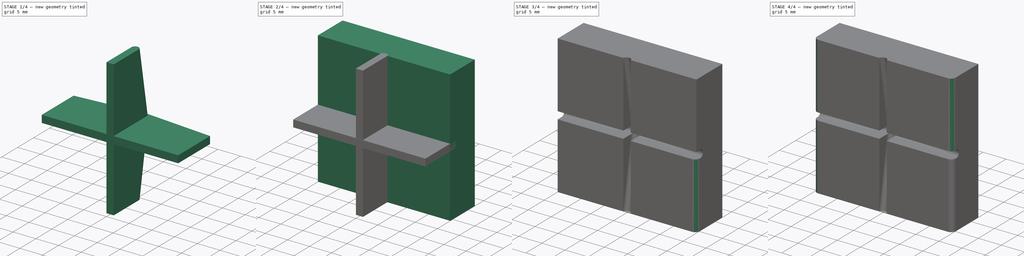
[diagram: build sequence overview — one tinted view per stage of 4, left to right]
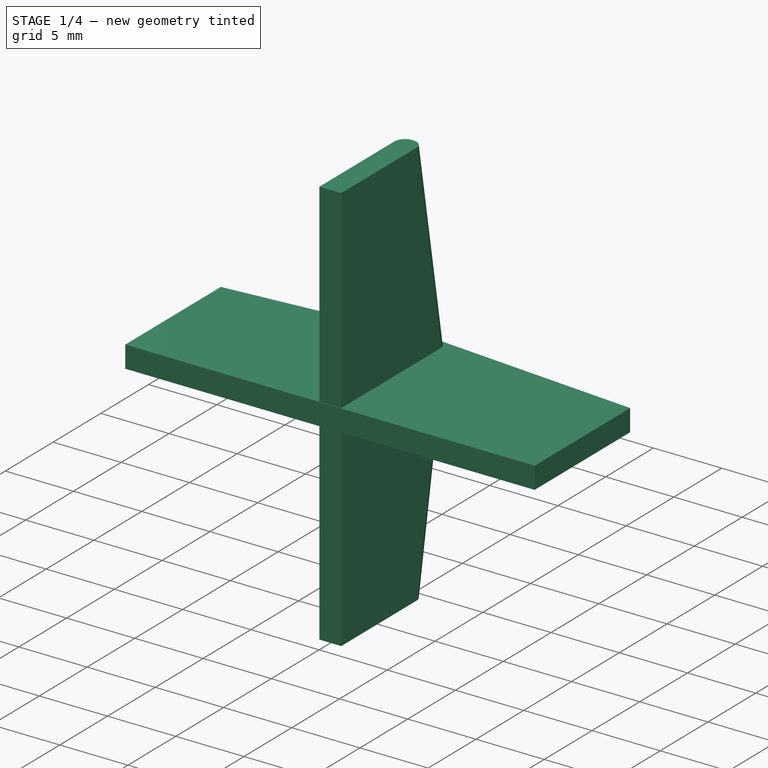
[diagram: stage 1 of 4 — iso view after this stage's code; geometry added in this stage tinted green]
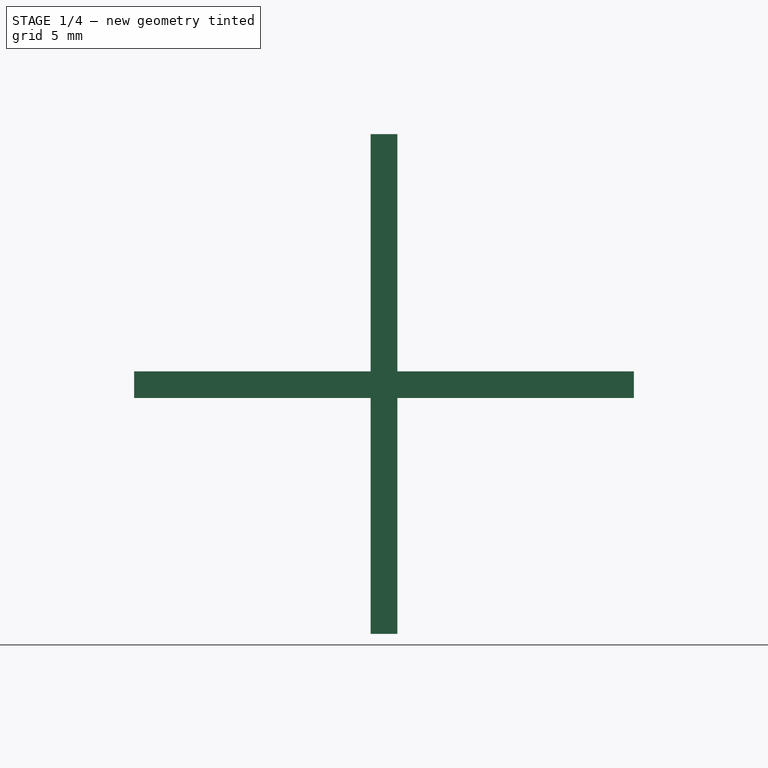
[diagram: stage 1 of 4 — front view after this stage's code; geometry added in this stage tinted green]
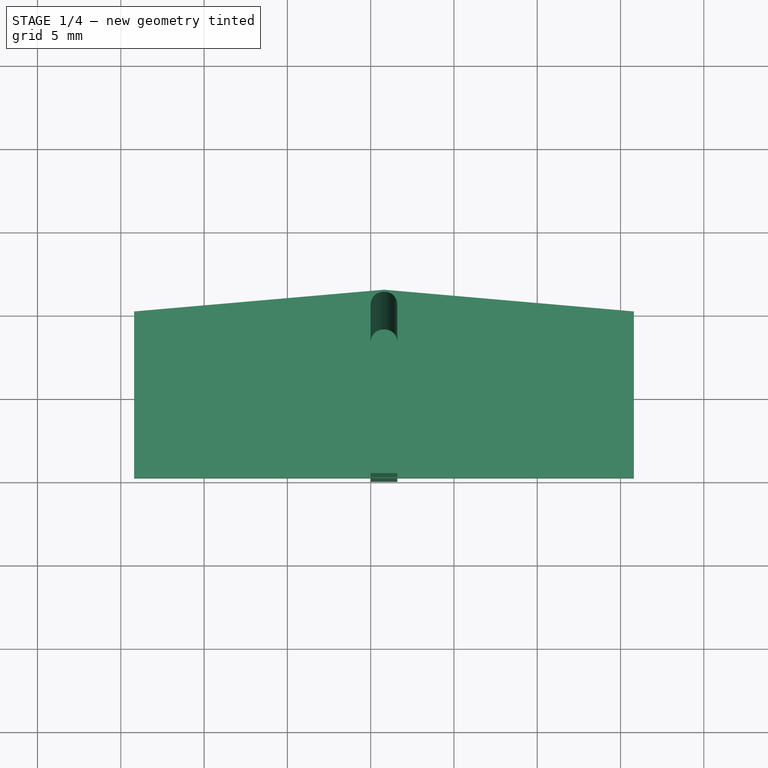
[diagram: stage 1 of 4 — top view after this stage's code; geometry added in this stage tinted green]
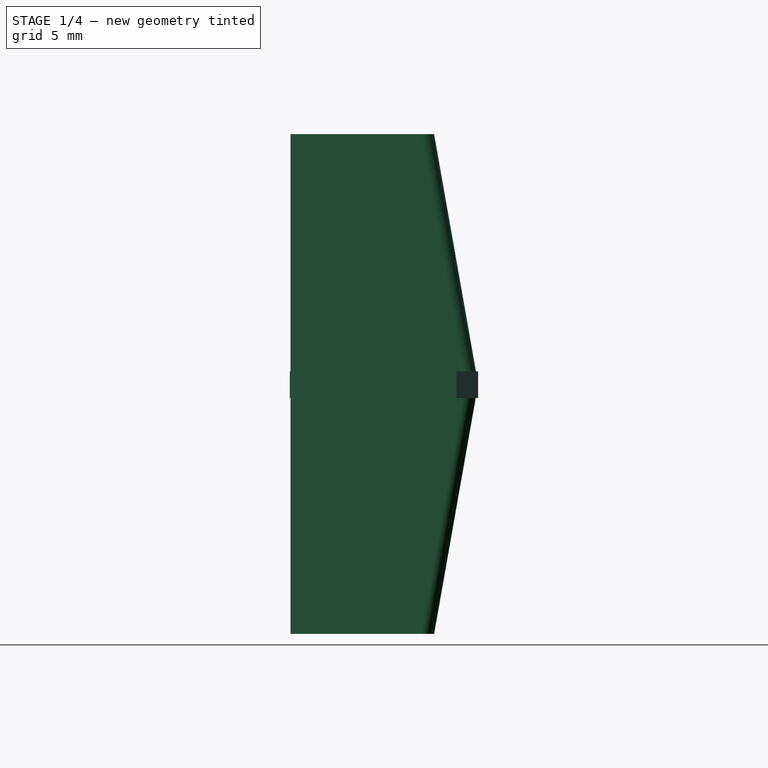
[diagram: stage 1 of 4 — right view after this stage's code; geometry added in this stage tinted green]
FCSTD DOCUMENT  (FreeCAD 0.16R6706 (Git))
Label: Bender
License: All rights reserved
LicenseURL: http://en.wikipedia.org/wiki/All_rights_reserved
objects: PartDesign::Fillet×6, Sketcher::SketchObject×2, PartDesign::Pad×2, Part::Box×1, Part::MultiFuse×1, Part::Cut×1
note: 15 computed .brp shape members not serialized (recipe doc carries the construction recipe); baked Part::Feature solids carry a one-line shape summary decoded from their .brp

FEATURE [Sketcher::SketchObject] Sketch
  Placement = pos=(0.8,0,0) rot=(0,0,1;0rad)
  sketch-geometry (5):
    g0: LineSegment StartX=-15 StartY=0 StartZ=0 EndX=15 EndY=0 EndZ=0
    g1: LineSegment StartX=15 StartY=0 StartZ=0 EndX=15 EndY=10 EndZ=0
    g2: LineSegment StartX=15 StartY=10 StartZ=0 EndX=0 EndY=11.3048 EndZ=0
    g3: LineSegment StartX=0 StartY=11.3048 StartZ=0 EndX=-15 EndY=10 EndZ=0
    g4: LineSegment StartX=-15 StartY=10 StartZ=0 EndX=-15 EndY=0 EndZ=0
  constraints (4):
    c: Coincident(g0,g1)
    c: Coincident(g1,g2)
    c: Coincident(g2,g3)
    c: Coincident(g3,g4)
FEATURE [PartDesign::Pad] Pad
  Length = 1.6
  Length2 = 100
  Placement = pos=(0.8,0,0) rot=(0,0,1;0rad)
  Sketch = -> Sketch
  Type = 0
FEATURE [Sketcher::SketchObject] Sketch001
  Placement = pos=(0,0,0.8) rot=(0.57735,0.57735,0.57735;2.0944rad)
  sketch-geometry (5):
    g0: LineSegment StartX=11.3125 StartY=0.040257 StartZ=0 EndX=8.6676 EndY=-14.9597 EndZ=0
    g1: LineSegment StartX=8.6676 StartY=-14.9597 StartZ=0 EndX=0.0402553 EndY=-14.9597 EndZ=0
    g2: LineSegment StartX=0.0402553 StartY=-14.9597 StartZ=0 EndX=0.0402553 EndY=15.0403 EndZ=0
    g3: LineSegment StartX=0.0402553 StartY=15.0403 StartZ=0 EndX=8.6676 EndY=15.0403 EndZ=0
    g4: LineSegment StartX=8.6676 StartY=15.0403 StartZ=0 EndX=11.3125 EndY=0.040257 EndZ=0
  constraints (14):
    c: Coincident(g0,g1)
    c: Coincident(g1,g2)
    c: Coincident(g2,g3)
    c: Coincident(g3,g4)
    c: Coincident(g4,g0)
    c: Equal(g1,g3)
    c: DistanceX(g-1,g0) = 11.3125
    c: DistanceX(g1,g0) = 8.62734
    c: DistanceY(g1,g2) = 30
    c: Perpendicular(g1,g2)
    c: Perpendicular(g3,g2)
    c: Angle(g4) = -1.39626
    c: Angle(g0) = -1.74533
    c: Vertical(g2)
FEATURE [PartDesign::Pad] Pad001
  Length = 1.6
  Length2 = 100
  Placement = pos=(0,0,0.8) rot=(0.57735,0.57735,0.57735;2.0944rad)
  Sketch = -> Sketch001
  Type = 0
FEATURE [PartDesign::Fillet] Fillet001
  Base = -> Pad001 [Edge15,Edge14,Edge4,Edge3]
  Placement = pos=(0,0,0.8) rot=(0.57735,0.57735,0.57735;2.0944rad)
  Radius = 0.75
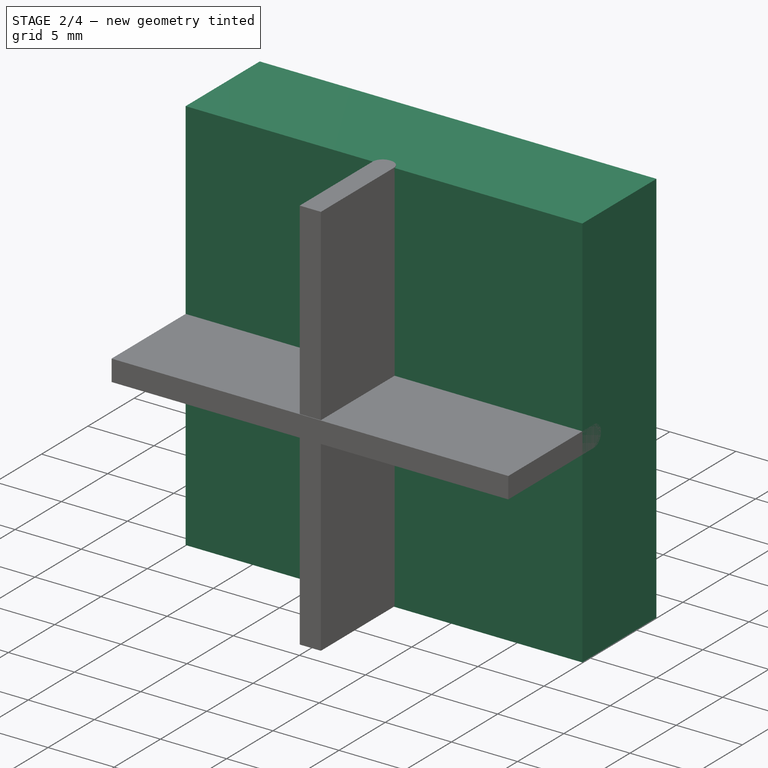
[diagram: stage 2 of 4 — iso view after this stage's code; geometry added in this stage tinted green]
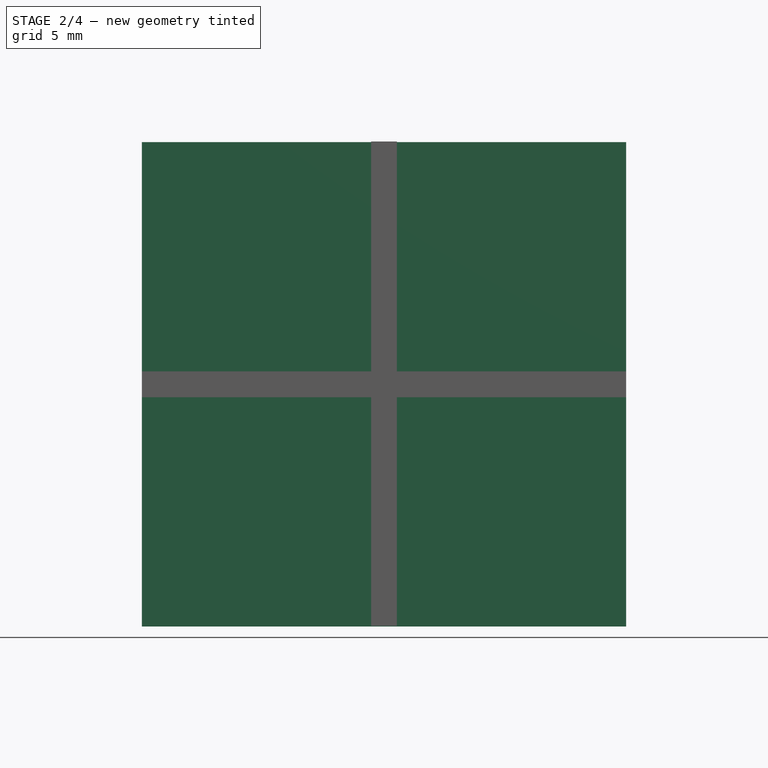
[diagram: stage 2 of 4 — front view after this stage's code; geometry added in this stage tinted green]
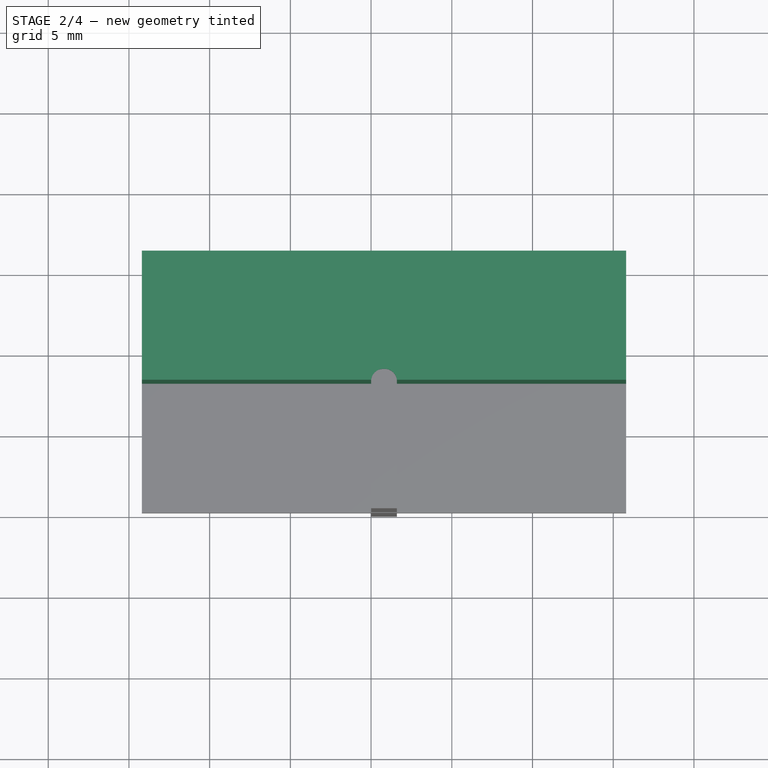
[diagram: stage 2 of 4 — top view after this stage's code; geometry added in this stage tinted green]
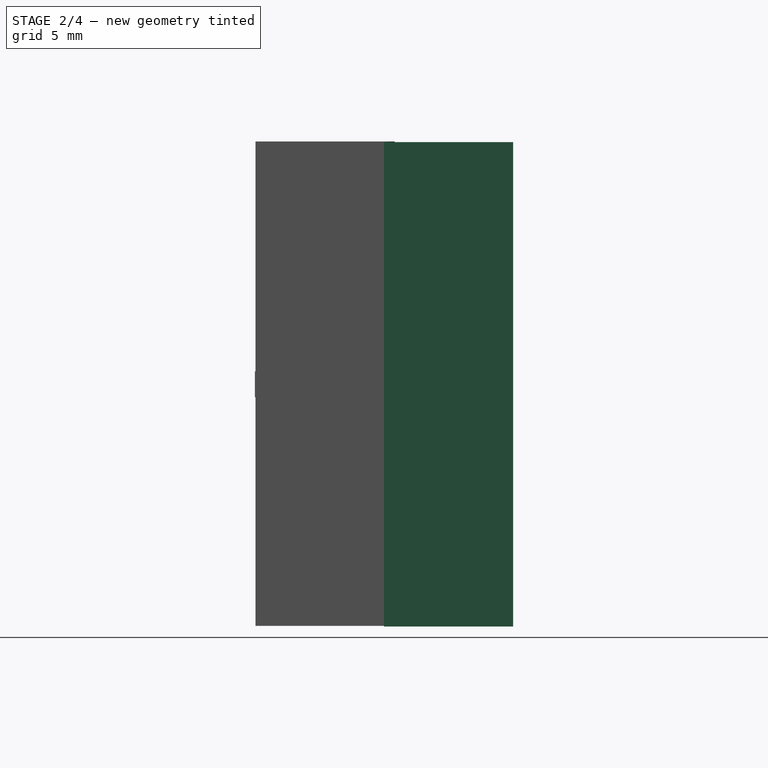
[diagram: stage 2 of 4 — right view after this stage's code; geometry added in this stage tinted green]
FEATURE [PartDesign::Fillet] Fillet
  Base = -> Pad [Edge9,Edge10,Edge13,Edge12]
  Placement = pos=(0.8,0,0) rot=(0,0,1;0rad)
  Radius = 0.75
FEATURE [Part::Box] Box  label="Cube"
  Height = 30
  Length = 30
  Placement = pos=(-14.2,8,-14.2) rot=(0,0,1;0rad)
  Width = 8
FEATURE [Part::MultiFuse] Fusion
  Shapes = -> [Fillet,Fillet001]
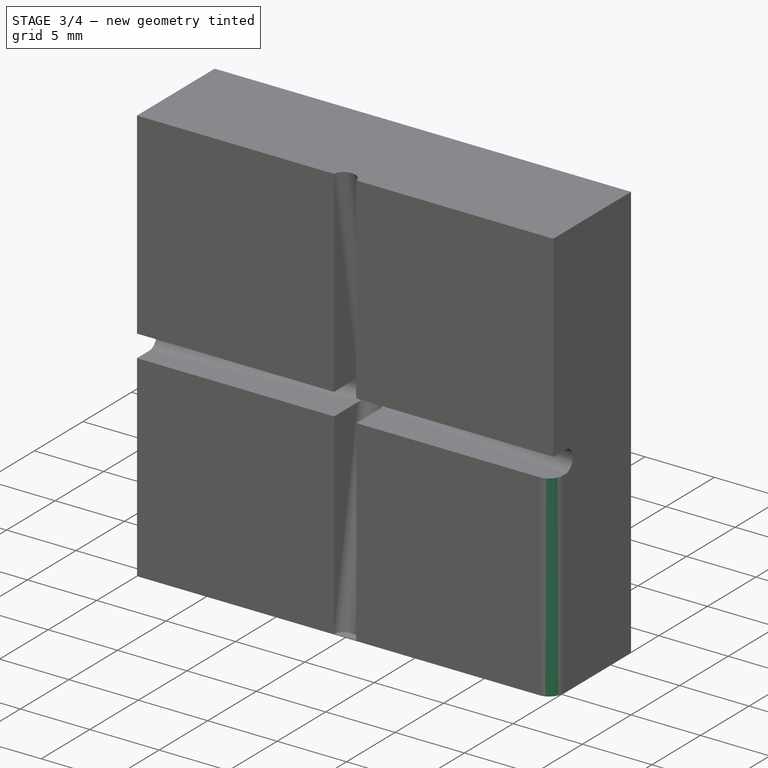
[diagram: stage 3 of 4 — iso view after this stage's code; geometry added in this stage tinted green]
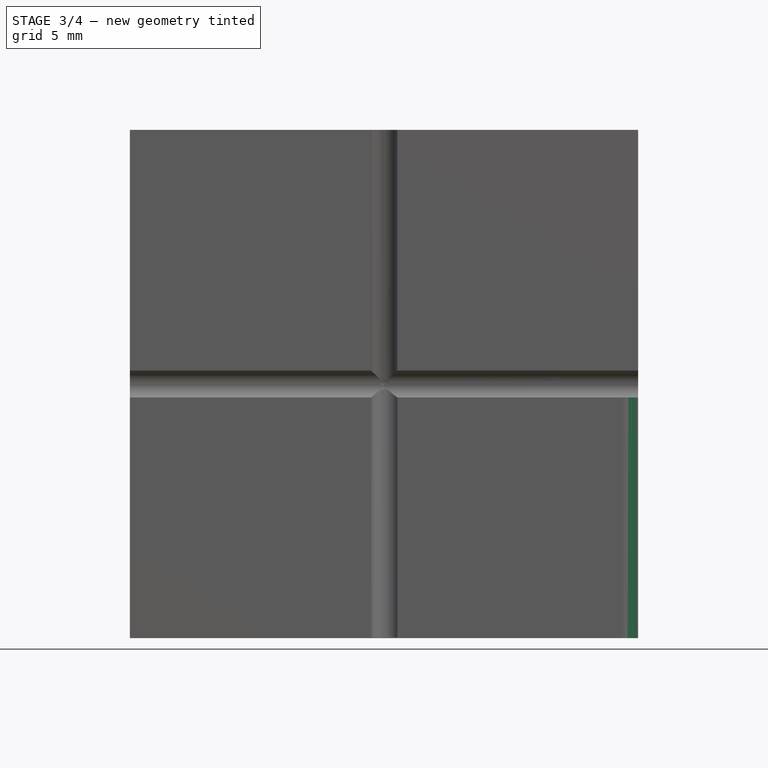
[diagram: stage 3 of 4 — front view after this stage's code; geometry added in this stage tinted green]
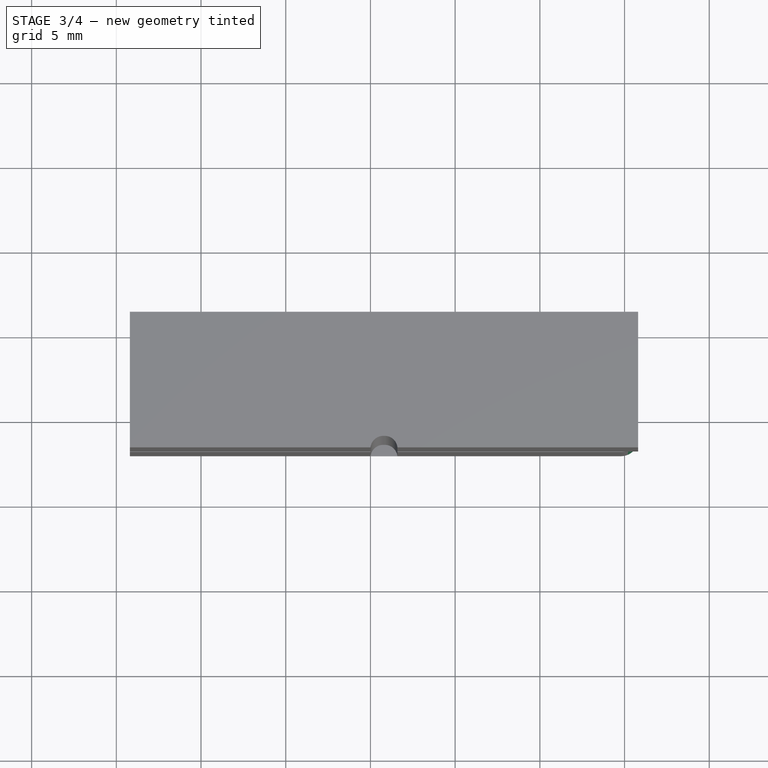
[diagram: stage 3 of 4 — top view after this stage's code; geometry added in this stage tinted green]
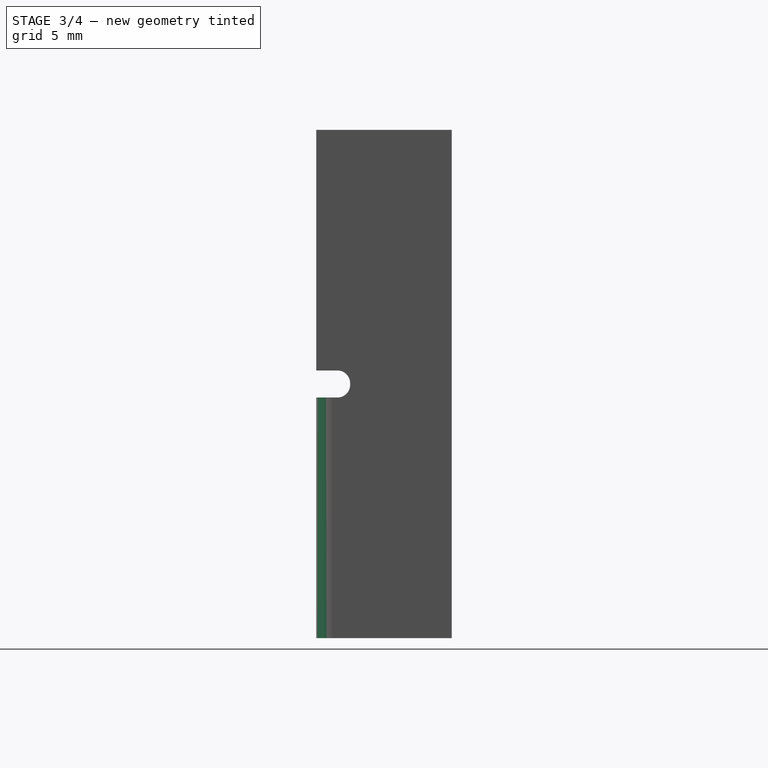
[diagram: stage 3 of 4 — right view after this stage's code; geometry added in this stage tinted green]
FEATURE [Part::Cut] Cut
  Base = -> Box
  Tool = -> Fusion
FEATURE [PartDesign::Fillet] Fillet002
  Base = -> Cut [Edge11]
  Radius = 1
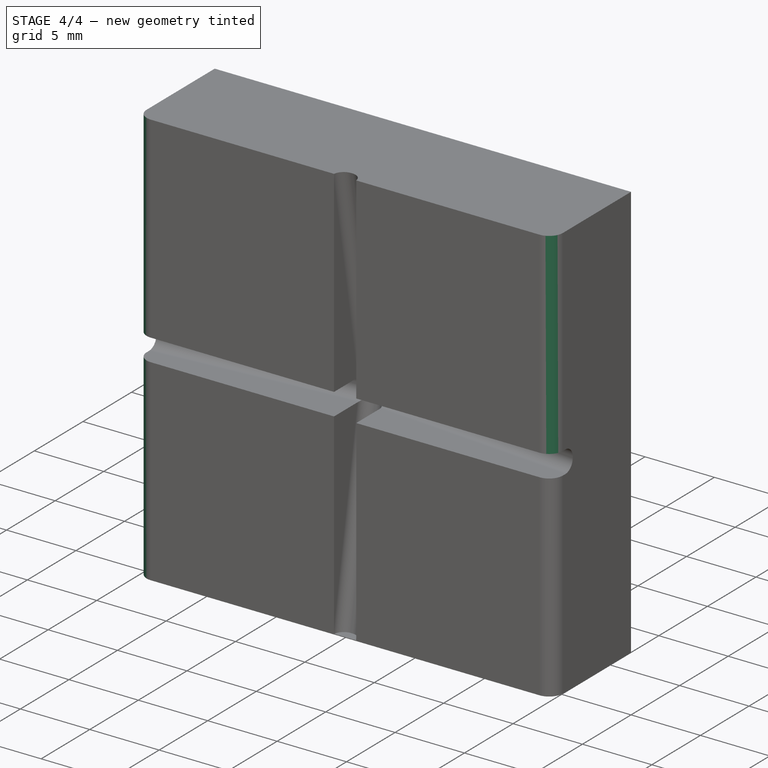
[diagram: stage 4 of 4 — iso view after this stage's code; geometry added in this stage tinted green]
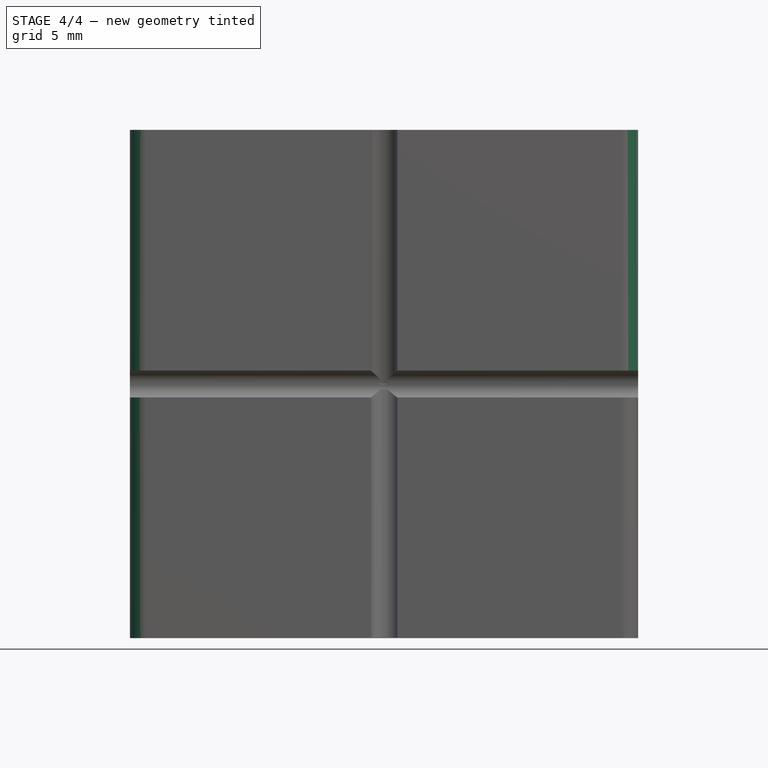
[diagram: stage 4 of 4 — front view after this stage's code; geometry added in this stage tinted green]
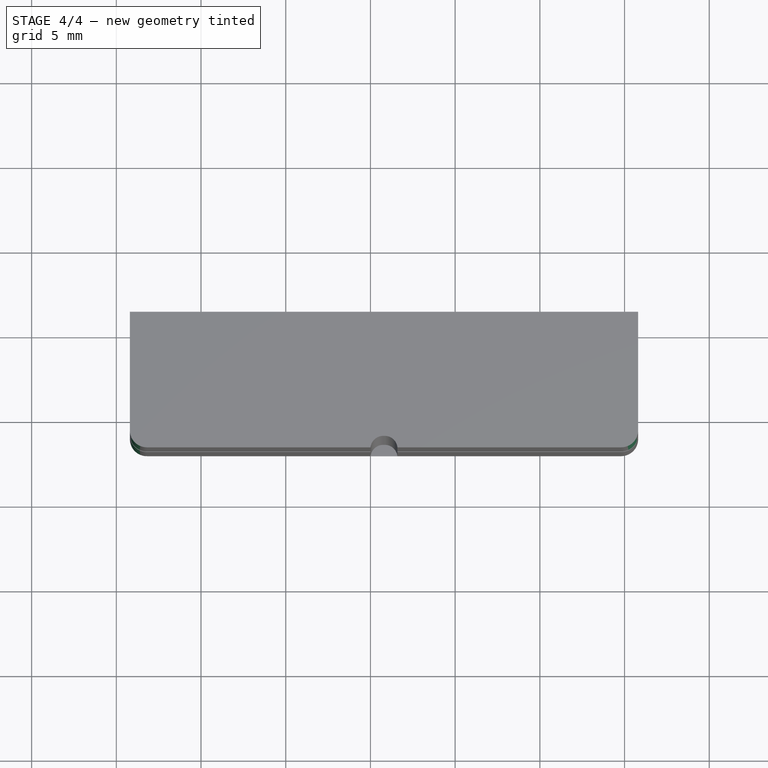
[diagram: stage 4 of 4 — top view after this stage's code; geometry added in this stage tinted green]
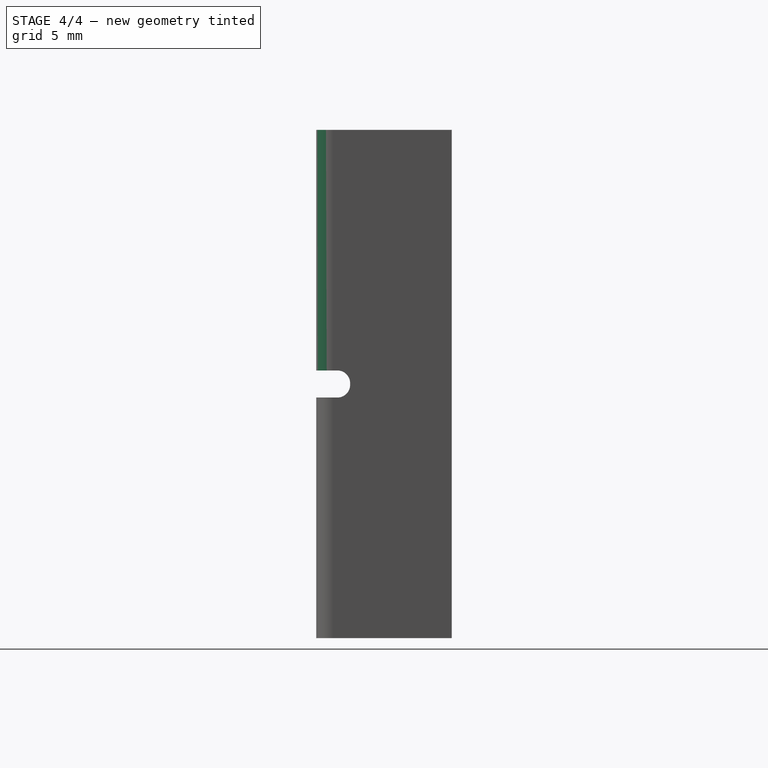
[diagram: stage 4 of 4 — right view after this stage's code; geometry added in this stage tinted green]
FEATURE [PartDesign::Fillet] Fillet003
  Base = -> Fillet002 [Edge51]
  Radius = 1
FEATURE [PartDesign::Fillet] Fillet004
  Base = -> Fillet003 [Edge52]
  Radius = 1
FEATURE [PartDesign::Fillet] Fillet005
  Base = -> Fillet004 [Edge27]
  Radius = 1
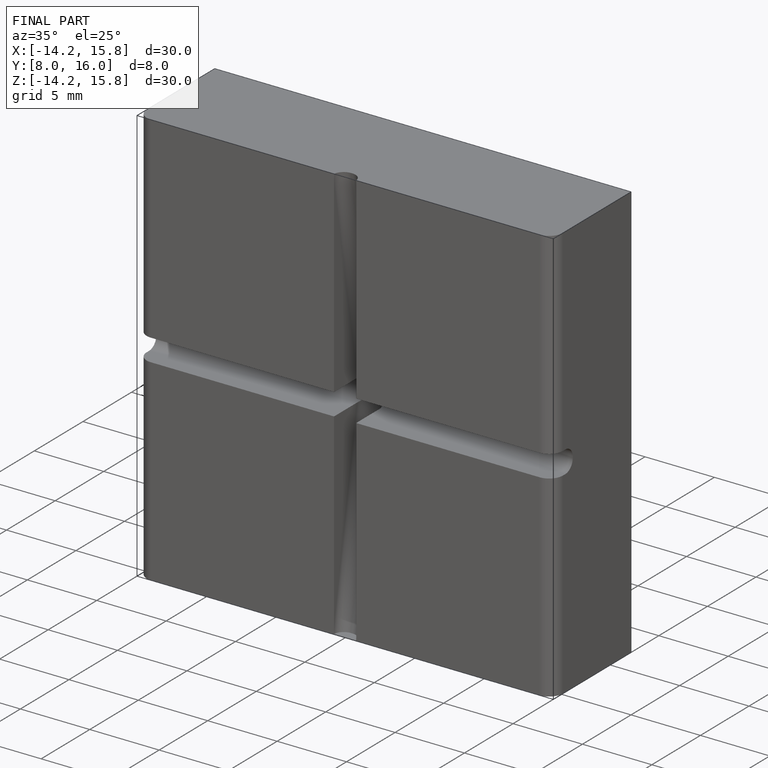
[diagram: finished part — iso view with bounding-box wireframe]
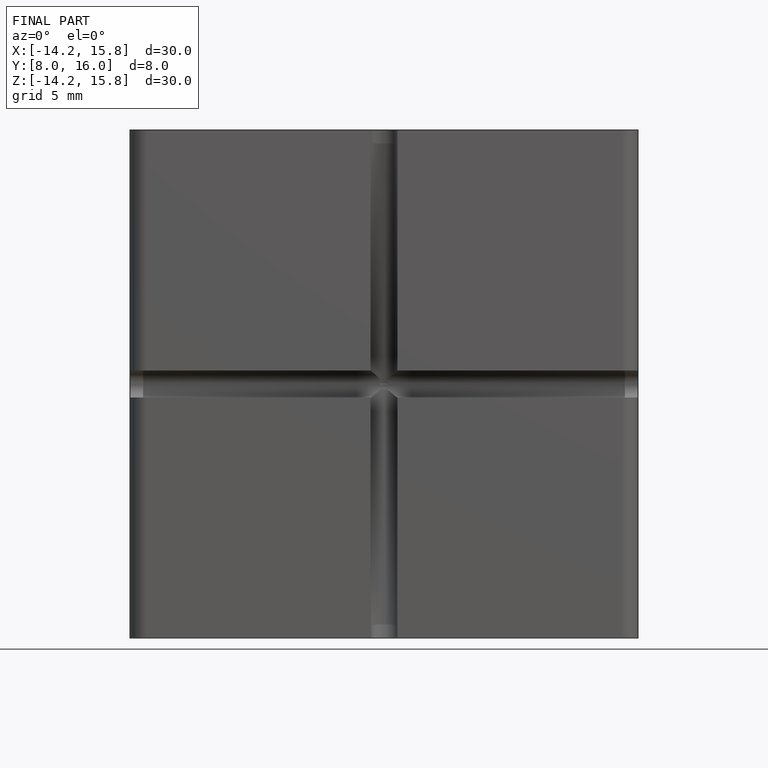
[diagram: finished part — front view with bounding-box wireframe]
